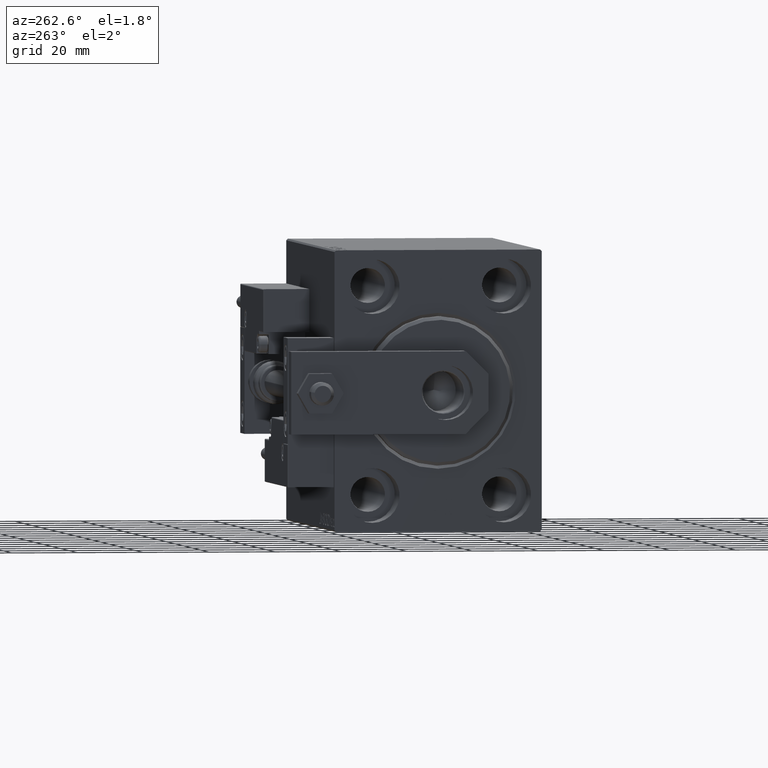
[diagram: clean part render]
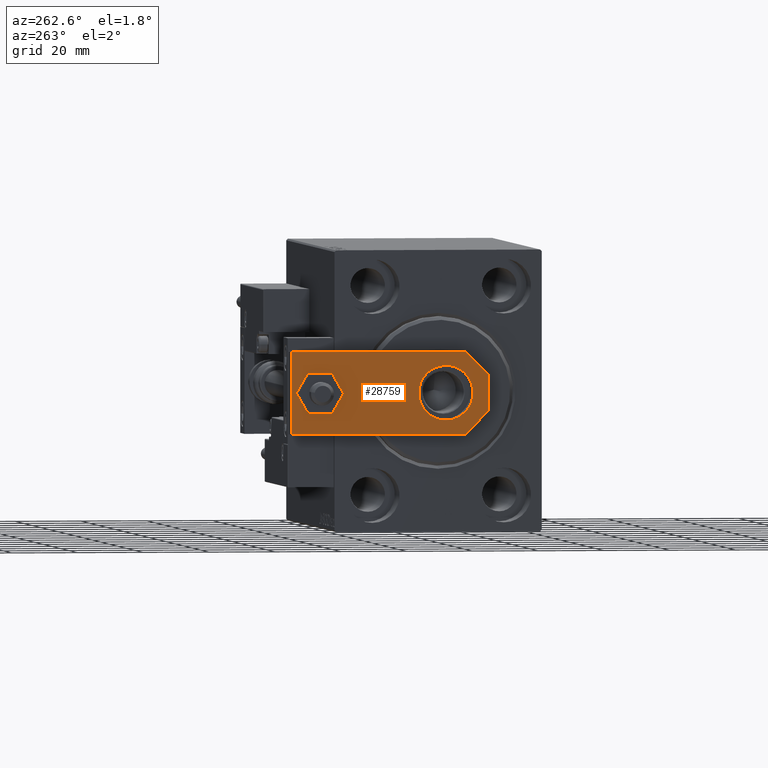
[diagram: same view with one face highlighted and labeled with its STEP entity id]
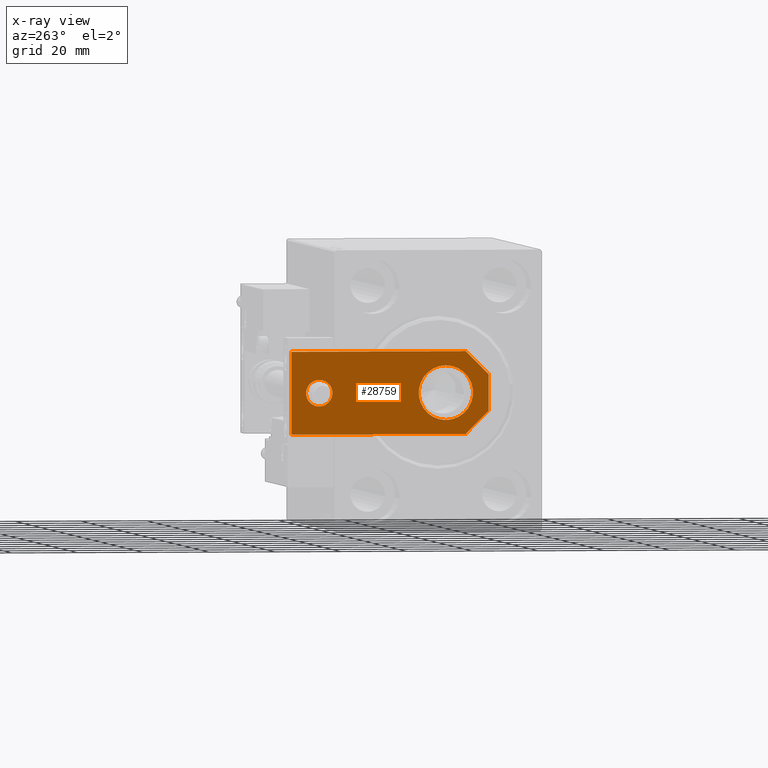
[diagram: x-ray of the same camera — body ghosted, the highlighted face saturated]
A machine part, auxiliary view. The second image highlights one B-rep face of the part: STEP entity #28759.
The next image is the same camera in x-ray: the body ghosted, the highlighted face saturated — about 0% of this face is hidden behind the body in this view.
In plain terms, the highlighted planar face has unit normal (-1, 0, 0).
Its self-contained STEP definition (entity closure, byte-faithful):
#785 = LINE ( 'NONE', #34994, #34133 ) ;
#1761 = EDGE_CURVE ( 'NONE', #3091, #21211, #24088, .T. ) ;
#1916 = CARTESIAN_POINT ( 'NONE',  ( -1.432611055310774642E-16, 51.50000000000000000, 6.000000000000000000 ) ) ;
#2388 = EDGE_CURVE ( 'NONE', #14115, #7325, #41756, .T. ) ;
#2724 = CARTESIAN_POINT ( 'NONE',  ( 12.50000000000000355, 60.00000000000000000, 6.000000000000000000 ) ) ;
#2868 = CARTESIAN_POINT ( 'NONE',  ( -12.50000000000000355, 7.000000000000013323, 6.000000000000000000 ) ) ;
#3091 = VERTEX_POINT ( 'NONE', #2868 ) ;
#4523 = VECTOR ( 'NONE', #34503, 1000.000000000000000 ) ;
#5060 = DIRECTION ( 'NONE',  ( 1.000000000000000000, 0.000000000000000000, 0.000000000000000000 ) ) ;
#5301 = DIRECTION ( 'NONE',  ( -0.000000000000000000, 0.000000000000000000, 1.000000000000000000 ) ) ;
#5566 = AXIS2_PLACEMENT_3D ( 'NONE', #27680, #31725, #12452 ) ;
#6579 = EDGE_CURVE ( 'NONE', #34988, #9682, #43735, .T. ) ;
#6634 = CIRCLE ( 'NONE', #33211, 4.000000000000000888 ) ;
#7325 = VERTEX_POINT ( 'NONE', #23748 ) ;
#8900 = AXIS2_PLACEMENT_3D ( 'NONE', #1916, #17109, #29529 ) ;
#9359 = CARTESIAN_POINT ( 'NONE',  ( 0.000000000000000000, 0.000000000000000000, 6.000000000000000000 ) ) ;
#9568 = CARTESIAN_POINT ( 'NONE',  ( -9.629649721936179265E-32, 12.99999999999999822, 6.000000000000000000 ) ) ;
#9682 = VERTEX_POINT ( 'NONE', #38528 ) ;
#9845 = AXIS2_PLACEMENT_3D ( 'NONE', #9359, #5301, #5060 ) ;
#10800 = ORIENTED_EDGE ( 'NONE', *, *, #1761, .T. ) ;
#10809 = LINE ( 'NONE', #2724, #43729 ) ;
#11827 = CARTESIAN_POINT ( 'NONE',  ( 2.749999999999980016, -2.749999999999988010, 6.000000000000000000 ) ) ;
#12452 = DIRECTION ( 'NONE',  ( 1.000000000000000000, 0.000000000000000000, 0.000000000000000000 ) ) ;
#12680 = EDGE_LOOP ( 'NONE', ( #43348, #10800, #13803, #50061, #36274, #38230 ) ) ;
#12899 = FACE_BOUND ( 'NONE', #20622, .T. ) ;
#13410 = PLANE ( 'NONE',  #9845 ) ;
#13803 = ORIENTED_EDGE ( 'NONE', *, *, #29518, .T. ) ;
#14115 = VERTEX_POINT ( 'NONE', #22778 ) ;
#14624 = VERTEX_POINT ( 'NONE', #39162 ) ;
#14977 = LINE ( 'NONE', #15195, #49068 ) ;
#15195 = CARTESIAN_POINT ( 'NONE',  ( -12.49999999999999822, 60.00000000000000000, 6.000000000000000000 ) ) ;
#16359 = EDGE_CURVE ( 'NONE', #45886, #3091, #14977, .T. ) ;
#16930 = CARTESIAN_POINT ( 'NONE',  ( -5.500000000000010658, 4.814824860968089633E-32, 6.000000000000000000 ) ) ;
#17109 = DIRECTION ( 'NONE',  ( 0.000000000000000000, 0.000000000000000000, 1.000000000000000000 ) ) ;
#18827 = DIRECTION ( 'NONE',  ( 0.000000000000000000, 1.000000000000000000, 0.000000000000000000 ) ) ;
#20460 = ORIENTED_EDGE ( 'NONE', *, *, #21926, .F. ) ;
#20622 = EDGE_LOOP ( 'NONE', ( #41645, #24346 ) ) ;
#20689 = AXIS2_PLACEMENT_3D ( 'NONE', #9568, #24762, #32376 ) ;
#20945 = CIRCLE ( 'NONE', #5566, 8.250000000000000000 ) ;
#21211 = VERTEX_POINT ( 'NONE', #16930 ) ;
#21926 = EDGE_CURVE ( 'NONE', #7325, #14115, #20945, .T. ) ;
#22778 = CARTESIAN_POINT ( 'NONE',  ( 8.250000000000000000, 13.00000000000000000, 6.000000000000000000 ) ) ;
#23748 = CARTESIAN_POINT ( 'NONE',  ( -8.250000000000000000, 12.99999999999999822, 6.000000000000000000 ) ) ;
#24088 = LINE ( 'NONE', #35006, #4523 ) ;
#24311 = FACE_OUTER_BOUND ( 'NONE', #12680, .T. ) ;
#24346 = ORIENTED_EDGE ( 'NONE', *, *, #25959, .F. ) ;
#24629 = CARTESIAN_POINT ( 'NONE',  ( 12.50000000000000355, 60.00000000000000000, 6.000000000000000000 ) ) ;
#24762 = DIRECTION ( 'NONE',  ( 0.000000000000000000, 0.000000000000000000, 1.000000000000000000 ) ) ;
#25075 = DIRECTION ( 'NONE',  ( 0.000000000000000000, 0.000000000000000000, 1.000000000000000000 ) ) ;
#25959 = EDGE_CURVE ( 'NONE', #14624, #32676, #27542, .T. ) ;
#27136 = DIRECTION ( 'NONE',  ( 1.000000000000000000, 0.000000000000000000, 0.000000000000000000 ) ) ;
#27291 = DIRECTION ( 'NONE',  ( 0.7071067811865486830, 0.7071067811865464625, -0.000000000000000000 ) ) ;
#27542 = CIRCLE ( 'NONE', #8900, 4.000000000000000888 ) ;
#27589 = DIRECTION ( 'NONE',  ( -8.673617379884035472E-17, -1.000000000000000000, 0.000000000000000000 ) ) ;
#27680 = CARTESIAN_POINT ( 'NONE',  ( -9.629649721936179265E-32, 12.99999999999999822, 6.000000000000000000 ) ) ;
#28759 = ADVANCED_FACE ( 'NONE', ( #12899, #24311, #39766 ), #13410, .T. ) ;
#29518 = EDGE_CURVE ( 'NONE', #21211, #34988, #785, .T. ) ;
#29529 = DIRECTION ( 'NONE',  ( 1.000000000000000000, 0.000000000000000000, 0.000000000000000000 ) ) ;
#29912 = EDGE_CURVE ( 'NONE', #32208, #45886, #10809, .T. ) ;
#30386 = EDGE_CURVE ( 'NONE', #32676, #14624, #6634, .T. ) ;
#31407 = VECTOR ( 'NONE', #27291, 999.9999999999998863 ) ;
#31725 = DIRECTION ( 'NONE',  ( 0.000000000000000000, 0.000000000000000000, 1.000000000000000000 ) ) ;
#32208 = VERTEX_POINT ( 'NONE', #24629 ) ;
#32376 = DIRECTION ( 'NONE',  ( 1.000000000000000000, 0.000000000000000000, 0.000000000000000000 ) ) ;
#32676 = VERTEX_POINT ( 'NONE', #41487 ) ;
#33211 = AXIS2_PLACEMENT_3D ( 'NONE', #36481, #25075, #40530 ) ;
#34044 = LINE ( 'NONE', #41893, #43781 ) ;
#34133 = VECTOR ( 'NONE', #27136, 1000.000000000000000 ) ;
#34503 = DIRECTION ( 'NONE',  ( 0.7071067811865465735, -0.7071067811865485719, 0.000000000000000000 ) ) ;
#34988 = VERTEX_POINT ( 'NONE', #38265 ) ;
#34994 = CARTESIAN_POINT ( 'NONE',  ( -12.50000000000000355, 4.814824860968089633E-32, 6.000000000000000000 ) ) ;
#35006 = CARTESIAN_POINT ( 'NONE',  ( -2.750000000000013767, -2.750000000000005773, 6.000000000000000000 ) ) ;
#36274 = ORIENTED_EDGE ( 'NONE', *, *, #49350, .T. ) ;
#36481 = CARTESIAN_POINT ( 'NONE',  ( -1.432611055310774642E-16, 51.50000000000000000, 6.000000000000000000 ) ) ;
#37842 = CARTESIAN_POINT ( 'NONE',  ( -12.49999999999999822, 60.00000000000000000, 6.000000000000000000 ) ) ;
#38230 = ORIENTED_EDGE ( 'NONE', *, *, #29912, .T. ) ;
#38265 = CARTESIAN_POINT ( 'NONE',  ( 5.499999999999976907, 4.814824860968089633E-32, 6.000000000000000000 ) ) ;
#38528 = CARTESIAN_POINT ( 'NONE',  ( 12.50000000000000355, 7.000000000000006217, 6.000000000000000000 ) ) ;
#39162 = CARTESIAN_POINT ( 'NONE',  ( 4.000000000000000888, 51.50000000000000000, 6.000000000000000000 ) ) ;
#39766 = FACE_BOUND ( 'NONE', #49115, .T. ) ;
#40530 = DIRECTION ( 'NONE',  ( 1.000000000000000000, 0.000000000000000000, 0.000000000000000000 ) ) ;
#41487 = CARTESIAN_POINT ( 'NONE',  ( -4.000000000000000888, 51.50000000000000000, 6.000000000000000000 ) ) ;
#41645 = ORIENTED_EDGE ( 'NONE', *, *, #30386, .F. ) ;
#41756 = CIRCLE ( 'NONE', #20689, 8.250000000000000000 ) ;
#41893 = CARTESIAN_POINT ( 'NONE',  ( 12.50000000000000355, 4.814824860968089633E-32, 6.000000000000000000 ) ) ;
#43348 = ORIENTED_EDGE ( 'NONE', *, *, #16359, .T. ) ;
#43729 = VECTOR ( 'NONE', #48578, 1000.000000000000000 ) ;
#43735 = LINE ( 'NONE', #11827, #31407 ) ;
#43781 = VECTOR ( 'NONE', #18827, 1000.000000000000000 ) ;
#45886 = VERTEX_POINT ( 'NONE', #37842 ) ;
#46927 = ORIENTED_EDGE ( 'NONE', *, *, #2388, .F. ) ;
#48578 = DIRECTION ( 'NONE',  ( -1.000000000000000000, 0.000000000000000000, 0.000000000000000000 ) ) ;
#49068 = VECTOR ( 'NONE', #27589, 1000.000000000000000 ) ;
#49115 = EDGE_LOOP ( 'NONE', ( #20460, #46927 ) ) ;
#49350 = EDGE_CURVE ( 'NONE', #9682, #32208, #34044, .T. ) ;
#50061 = ORIENTED_EDGE ( 'NONE', *, *, #6579, .T. ) ;